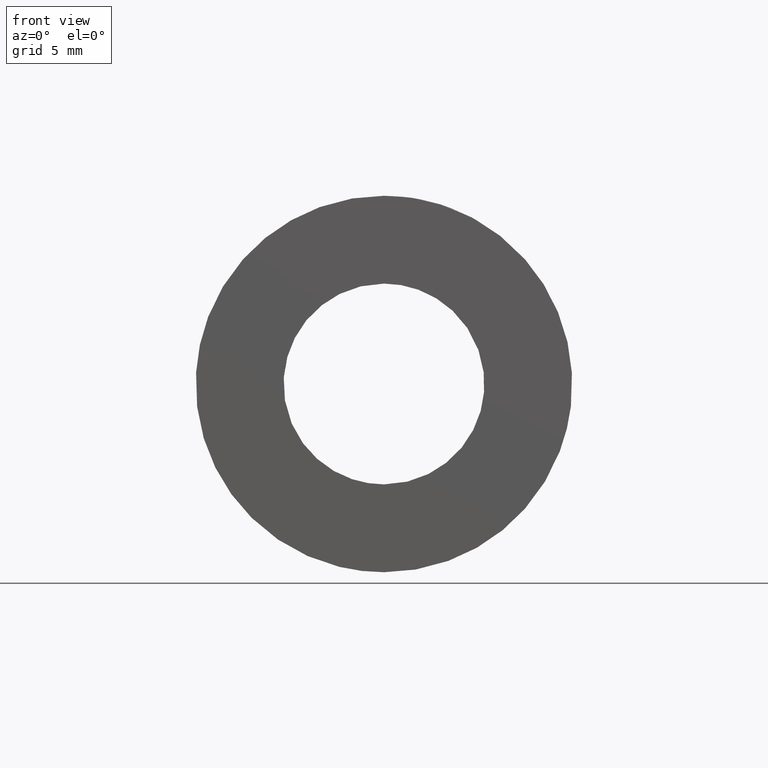
[diagram: clean part render]
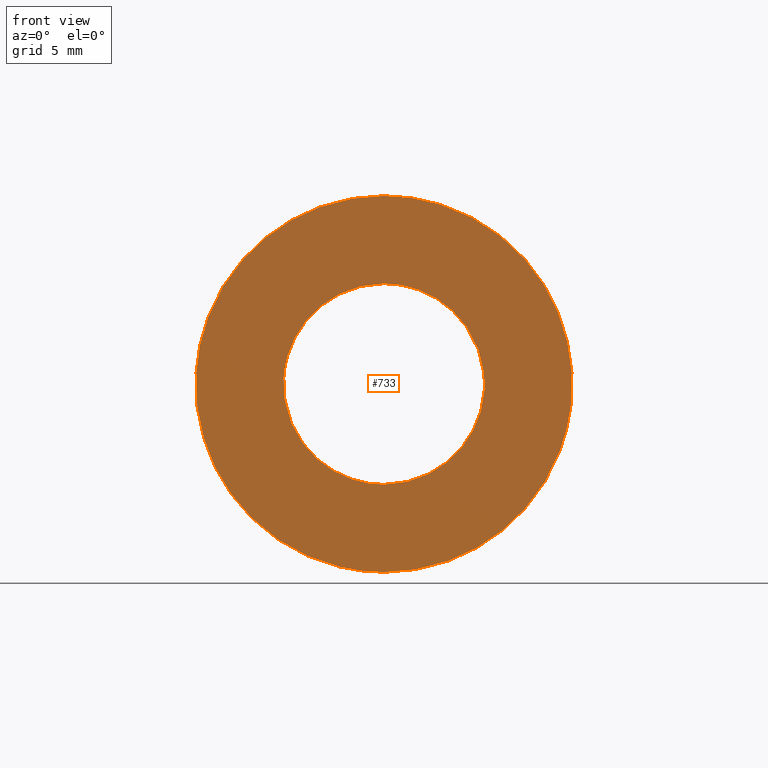
[diagram: same view with one face highlighted and labeled with its STEP entity id]
A machine part, front view. The second image highlights one B-rep face of the part: STEP entity #733.
In plain terms, the highlighted face is a freeform B-spline surface patch.
Its self-contained STEP definition (entity closure, byte-faithful):
#270=CARTESIAN_POINT('',(-7.486011356600631,-3.557742E-016,0.457858022546224));
#271=VERTEX_POINT('',#270);
#277=CARTESIAN_POINT('',(0.0,-1.377682E-015,7.500000000000000));
#278=VERTEX_POINT('',#277);
#279=CARTESIAN_POINT('',(0.0,-1.377682E-015,7.500000000000000));
#280=CARTESIAN_POINT('',(-7.055301189773867,-1.377682E-015,7.500000000000000));
#281=CARTESIAN_POINT('',(-7.486011356600631,-3.557742E-016,0.457858022546224));
#289=(BOUNDED_CURVE()B_SPLINE_CURVE(2,(#279,#280,#281),.UNSPECIFIED.,.F.,.U.)B_SPLINE_CURVE_WITH_KNOTS((3,3),(0.500000000000000,0.739333101089743),.UNSPECIFIED.)CURVE()GEOMETRIC_REPRESENTATION_ITEM()RATIONAL_B_SPLINE_CURVE((1.0,0.719603830612879,0.976072339250594))REPRESENTATION_ITEM(''));
#290=EDGE_CURVE('',#278,#271,#289,.T.);
#292=CARTESIAN_POINT('',(7.447571628019151,-1.569064E-015,-0.885255243148447));
#293=VERTEX_POINT('',#292);
#294=CARTESIAN_POINT('',(7.447571628019152,-1.569064E-015,-0.885255243148447));
#295=CARTESIAN_POINT('',(7.500000000000000,-1.377682E-015,-0.444180130983140));
#296=CARTESIAN_POINT('',(7.500000000000000,-1.377682E-015,-1.836910E-016));
#297=CARTESIAN_POINT('',(7.500000000000000,-1.377682E-015,7.500000000000000));
#298=CARTESIAN_POINT('',(0.0,-1.377682E-015,7.500000000000000));
#306=(BOUNDED_CURVE()B_SPLINE_CURVE(2,(#294,#295,#296,#297,#298),.UNSPECIFIED.,.F.,.U.)B_SPLINE_CURVE_WITH_KNOTS((3,2,3),(0.229562507934956,0.250000000000000,0.500000000000000),.UNSPECIFIED.)CURVE()GEOMETRIC_REPRESENTATION_ITEM()RATIONAL_B_SPLINE_CURVE((0.956026821651157,0.976055988658380,1.0,0.707106781186547,1.0))REPRESENTATION_ITEM(''));
#307=EDGE_CURVE('',#293,#278,#306,.T.);
#337=CARTESIAN_POINT('',(0.0,-1.377682E-015,-7.500000000000000));
#338=VERTEX_POINT('',#337);
#339=CARTESIAN_POINT('',(0.0,-1.377682E-015,-7.500000000000000));
#340=CARTESIAN_POINT('',(6.661310310832219,-1.377682E-015,-7.500000000000002));
#341=CARTESIAN_POINT('',(7.447571628019152,-1.569064E-015,-0.885255243148447));
#349=(BOUNDED_CURVE()B_SPLINE_CURVE(2,(#339,#340,#341),.UNSPECIFIED.,.F.,.U.)B_SPLINE_CURVE_WITH_KNOTS((3,3),(0.0,0.229562507934956),.UNSPECIFIED.)CURVE()GEOMETRIC_REPRESENTATION_ITEM()RATIONAL_B_SPLINE_CURVE((1.0,0.731050792528168,0.956026821651157))REPRESENTATION_ITEM(''));
#350=EDGE_CURVE('',#338,#293,#349,.T.);
#352=CARTESIAN_POINT('',(-7.486011356600631,-3.557742E-016,0.457858022546224));
#353=CARTESIAN_POINT('',(-7.500000000000000,-1.377682E-015,0.229142704311694));
#354=CARTESIAN_POINT('',(-7.500000000000000,-1.377682E-015,-1.836910E-016));
#355=CARTESIAN_POINT('',(-7.500000000000000,-1.377682E-015,-7.500000000000000));
#356=CARTESIAN_POINT('',(0.0,-1.377682E-015,-7.500000000000000));
#364=(BOUNDED_CURVE()B_SPLINE_CURVE(2,(#352,#353,#354,#355,#356),.UNSPECIFIED.,.F.,.U.)B_SPLINE_CURVE_WITH_KNOTS((3,2,3),(0.739333101089743,0.750000000000000,1.0),.UNSPECIFIED.)CURVE()GEOMETRIC_REPRESENTATION_ITEM()RATIONAL_B_SPLINE_CURVE((0.976072339250594,0.987502950573668,1.0,0.707106781186547,1.0))REPRESENTATION_ITEM(''));
#365=EDGE_CURVE('',#271,#338,#364,.T.);
#411=CARTESIAN_POINT('',(3.973877159715840,4.142001E-016,0.456399298287494));
#412=VERTEX_POINT('',#411);
#418=CARTESIAN_POINT('',(0.0,0.0,4.0));
#419=VERTEX_POINT('',#418);
#420=CARTESIAN_POINT('',(3.973877159715840,4.142001E-016,0.456399298287494));
#421=CARTESIAN_POINT('',(3.566895059196512,0.0,4.0));
#422=CARTESIAN_POINT('',(0.0,0.0,4.0));
#430=(BOUNDED_CURVE()B_SPLINE_CURVE(2,(#420,#421,#422),.UNSPECIFIED.,.F.,.U.)B_SPLINE_CURVE_WITH_KNOTS((3,3),(0.269767612755097,0.500000000000000),.UNSPECIFIED.)CURVE()GEOMETRIC_REPRESENTATION_ITEM()RATIONAL_B_SPLINE_CURVE((0.957344018781762,0.730265980098941,1.0))REPRESENTATION_ITEM(''));
#431=EDGE_CURVE('',#412,#419,#430,.T.);
#433=CARTESIAN_POINT('',(-3.992539548623593,-6.938894E-016,0.244188354846649));
#434=VERTEX_POINT('',#433);
#435=CARTESIAN_POINT('',(0.0,0.0,4.0));
#436=CARTESIAN_POINT('',(-3.762829747240873,0.0,4.000000000000000));
#437=CARTESIAN_POINT('',(-3.992539548623593,-6.938894E-016,0.244188354846649));
#445=(BOUNDED_CURVE()B_SPLINE_CURVE(2,(#435,#436,#437),.UNSPECIFIED.,.F.,.U.)B_SPLINE_CURVE_WITH_KNOTS((3,3),(0.500000000000000,0.739333213044698),.UNSPECIFIED.)CURVE()GEOMETRIC_REPRESENTATION_ITEM()RATIONAL_B_SPLINE_CURVE((1.0,0.719603699449491,0.976072579191782))REPRESENTATION_ITEM(''));
#446=EDGE_CURVE('',#419,#434,#445,.T.);
#556=CARTESIAN_POINT('',(0.0,0.0,-4.0));
#557=VERTEX_POINT('',#556);
#558=CARTESIAN_POINT('',(-3.992539548623593,-6.938894E-016,0.244188354846649));
#559=CARTESIAN_POINT('',(-4.0,0.0,0.122208143412355));
#560=CARTESIAN_POINT('',(-4.0,0.0,-1.836910E-016));
#561=CARTESIAN_POINT('',(-4.000000000000000,0.0,-4.000000000000000));
#562=CARTESIAN_POINT('',(0.0,0.0,-4.0));
#570=(BOUNDED_CURVE()B_SPLINE_CURVE(2,(#558,#559,#560,#561,#562),.UNSPECIFIED.,.F.,.U.)B_SPLINE_CURVE_WITH_KNOTS((3,2,3),(0.739333213044698,0.750000000000000,1.0),.UNSPECIFIED.)CURVE()GEOMETRIC_REPRESENTATION_ITEM()RATIONAL_B_SPLINE_CURVE((0.976072579191782,0.987503081737056,1.0,0.707106781186548,1.0))REPRESENTATION_ITEM(''));
#571=EDGE_CURVE('',#434,#557,#570,.T.);
#573=CARTESIAN_POINT('',(0.0,0.0,-4.0));
#574=CARTESIAN_POINT('',(4.000000000000000,0.0,-4.000000000000000));
#575=CARTESIAN_POINT('',(4.0,0.0,-1.836910E-016));
#576=CARTESIAN_POINT('',(4.000000000000000,0.0,0.228947243177165));
#577=CARTESIAN_POINT('',(3.973877159715840,4.142001E-016,0.456399298287494));
#585=(BOUNDED_CURVE()B_SPLINE_CURVE(2,(#573,#574,#575,#576,#577),.UNSPECIFIED.,.F.,.U.)B_SPLINE_CURVE_WITH_KNOTS((3,2,3),(0.0,0.250000000000000,0.269767612755097),.UNSPECIFIED.)CURVE()GEOMETRIC_REPRESENTATION_ITEM()RATIONAL_B_SPLINE_CURVE((1.0,0.707106781186548,1.0,0.976840801087607,0.957344018781762))REPRESENTATION_ITEM(''));
#586=EDGE_CURVE('',#557,#412,#585,.T.);
#716=CARTESIAN_POINT('',(-8.249067709212000,-6.888411E-016,8.249249970927089));
#717=CARTESIAN_POINT('',(-8.249067709212000,-6.888411E-016,-8.249250373258443));
#718=CARTESIAN_POINT('',(8.249113574986154,-6.888411E-016,8.249249970927089));
#719=CARTESIAN_POINT('',(8.249113574986154,-6.888411E-016,-8.249250373258443));
#720=B_SPLINE_SURFACE_WITH_KNOTS('',1,1,((#716,#718),(#717,#719)),.UNSPECIFIED.,.F.,.F.,.U.,(2,2),(2,2),(0.0,16.498500344185530),(0.0,16.498181284198150),.UNSPECIFIED.);
#721=ORIENTED_EDGE('',*,*,#350,.T.);
#722=ORIENTED_EDGE('',*,*,#307,.T.);
#723=ORIENTED_EDGE('',*,*,#290,.T.);
#724=ORIENTED_EDGE('',*,*,#365,.T.);
#725=EDGE_LOOP('',(#721,#722,#723,#724));
#726=FACE_OUTER_BOUND('',#725,.T.);
#727=ORIENTED_EDGE('',*,*,#446,.F.);
#728=ORIENTED_EDGE('',*,*,#431,.F.);
#729=ORIENTED_EDGE('',*,*,#586,.F.);
#730=ORIENTED_EDGE('',*,*,#571,.F.);
#731=EDGE_LOOP('',(#727,#728,#729,#730));
#732=FACE_BOUND('',#731,.T.);
#733=ADVANCED_FACE('',(#726,#732),#720,.T.);